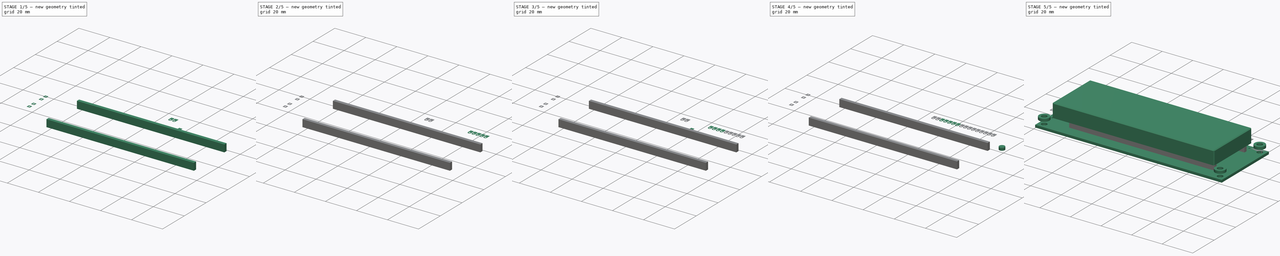
[diagram: build sequence overview — one tinted view per stage of 5, left to right]
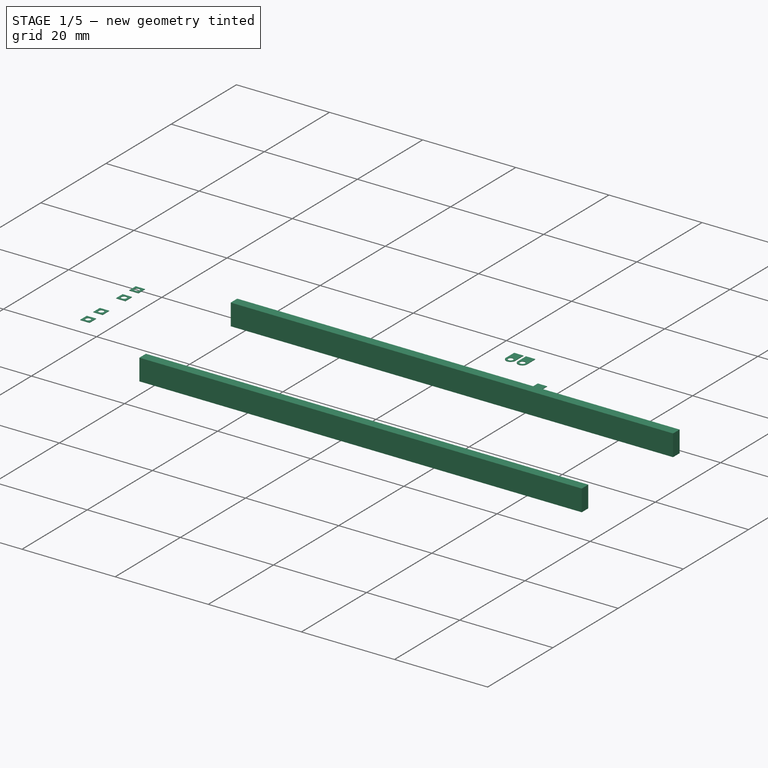
[diagram: stage 1 of 5 — iso view after this stage's code; geometry added in this stage tinted green]
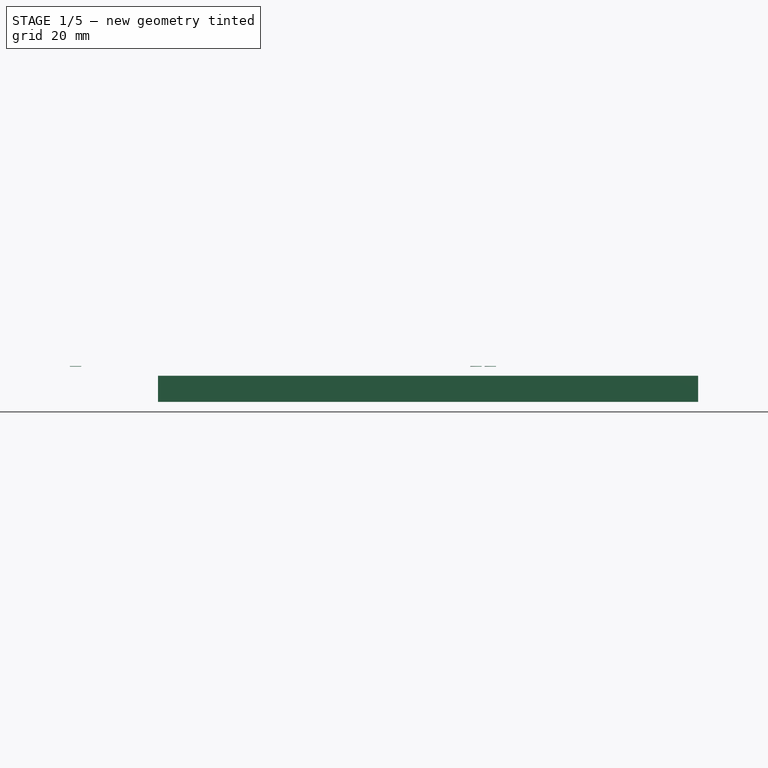
[diagram: stage 1 of 5 — front view after this stage's code; geometry added in this stage tinted green]
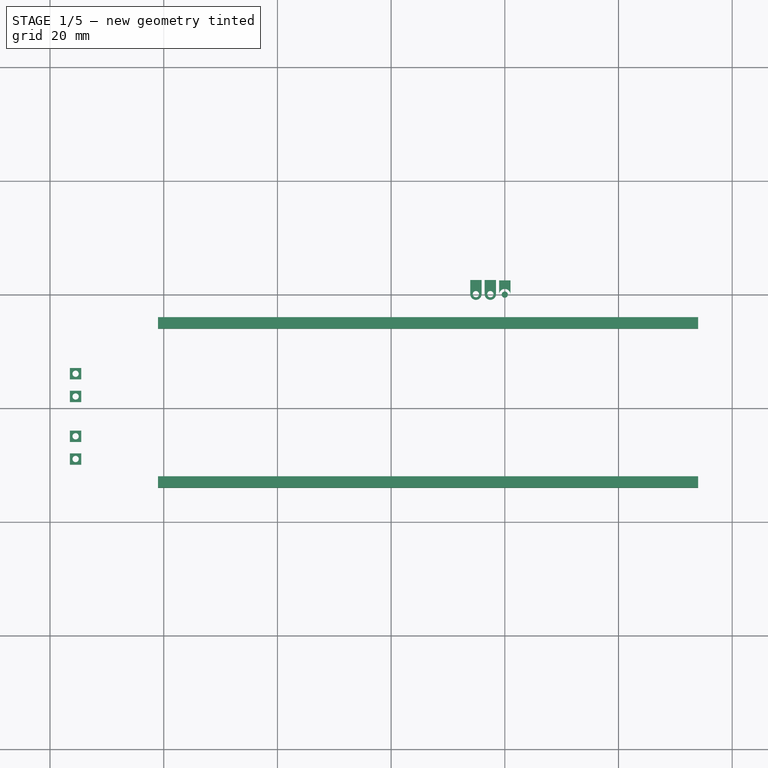
[diagram: stage 1 of 5 — top view after this stage's code; geometry added in this stage tinted green]
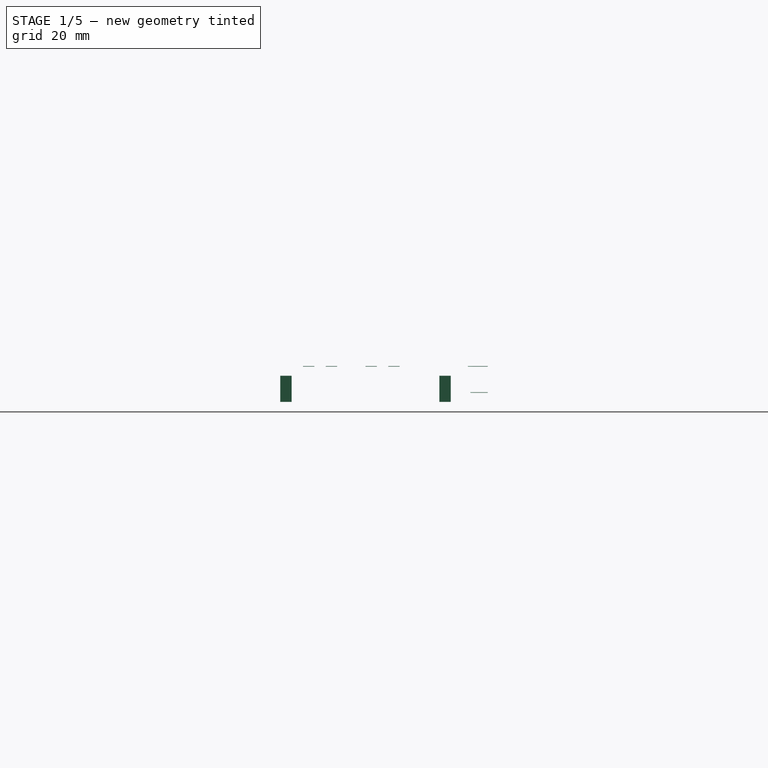
[diagram: stage 1 of 5 — right view after this stage's code; geometry added in this stage tinted green]
FCSTD DOCUMENT  (FreeCAD 0.17R11223 (Git))
Label: LCD-016N002L_13
License: Public Domain
LicenseURL: http://en.wikipedia.org/wiki/Public_domain
objects: Part::Cylinder×60, Part::Cut×41, Part::Box×25, Part::Fuse×16, Part::Chamfer×8, Part::Fillet×8, Sketcher::SketchObject×1, PartDesign::Pad×1, PartDesign::Body×1
note: 162 computed .brp shape members not serialized (recipe doc carries the construction recipe); baked Part::Feature solids carry a one-line shape summary decoded from their .brp

FEATURE [Part::Cylinder] Cylinder048
  Angle = 360
  AttacherType = Attacher::AttachEngine3D
  Height = 0.1
  Placement = pos=(0,0,1.6) rot=(0,0,1;0rad)
  Radius = 0.55
FEATURE [Part::Box] Box016  label="Kub016"
  AttacherType = Attacher::AttachEngine3D
  Height = 0.1
  Length = 2
  Placement = pos=(-1,0,1.6) rot=(0,0,1;0rad)
  Width = 2.5
FEATURE [Part::Cylinder] Cylinder049
  Angle = 360
  AttacherType = Attacher::AttachEngine3D
  Height = 0.1
  Placement = pos=(0,0,1.6) rot=(0,0,1;0rad)
  Radius = 1
FEATURE [Part::Cut] Cut032
  Base = -> Box016
  Tool = -> Cylinder049
FEATURE [Part::Cylinder] Cylinder050
  Angle = 360
  AttacherType = Attacher::AttachEngine3D
  Height = 0.1
  Placement = pos=(0,0,1.6) rot=(0,0,1;0rad)
  Radius = 1
FEATURE [Part::Cylinder] Cylinder051
  Angle = 360
  AttacherType = Attacher::AttachEngine3D
  Height = 0.1
  Placement = pos=(0,0,1.6) rot=(0,0,1;0rad)
  Radius = 0.55
FEATURE [Part::Cut] Cut033
  Base = -> Cylinder050
  Tool = -> Cylinder051
FEATURE [Part::Box] Box017  label="Kub017"
  AttacherType = Attacher::AttachEngine3D
  Height = 0.1
  Length = 2
  Placement = pos=(-1,0,1.6) rot=(0,0,1;0rad)
  Width = 2.5
FEATURE [Part::Cylinder] Cylinder052
  Angle = 360
  AttacherType = Attacher::AttachEngine3D
  Height = 0.1
  Placement = pos=(0,0,1.6) rot=(0,0,1;0rad)
  Radius = 1
FEATURE [Part::Cut] Cut034
  Base = -> Box017
  Tool = -> Cylinder052
FEATURE [Part::Fuse] Fusion014  label="Fusion030"
  Base = -> Cut033
  Placement = pos=(-2.54,0,4.6) rot=(0,0,1;0rad)
  Tool = -> Cut034
FEATURE [Part::Cylinder] Cylinder053
  Angle = 360
  AttacherType = Attacher::AttachEngine3D
  Height = 0.1
  Placement = pos=(0,0,1.6) rot=(0,0,1;0rad)
  Radius = 1
FEATURE [Part::Cylinder] Cylinder054
  Angle = 360
  AttacherType = Attacher::AttachEngine3D
  Height = 0.1
  Placement = pos=(0,0,1.6) rot=(0,0,1;0rad)
  Radius = 0.55
FEATURE [Part::Cut] Cut035
  Base = -> Cylinder053
  Tool = -> Cylinder054
FEATURE [Part::Box] Box018  label="Kub018"
  AttacherType = Attacher::AttachEngine3D
  Height = 0.1
  Length = 2
  Placement = pos=(-1,0,1.6) rot=(0,0,1;0rad)
  Width = 2.5
FEATURE [Part::Cylinder] Cylinder055
  Angle = 360
  AttacherType = Attacher::AttachEngine3D
  Height = 0.1
  Placement = pos=(0,0,1.6) rot=(0,0,1;0rad)
  Radius = 1
FEATURE [Part::Cut] Cut036
  Base = -> Box018
  Tool = -> Cylinder055
FEATURE [Part::Fuse] Fusion015  label="Fusion031"
  Base = -> Cut035
  Placement = pos=(-5.08,0,4.6) rot=(0,0,1;0rad)
  Tool = -> Cut036
FEATURE [Part::Box] Box019  label="Kub019"
  AttacherType = Attacher::AttachEngine3D
  Height = 0.1
  Length = 2
  Placement = pos=(-1,-1,1.6) rot=(0,0,1;0rad)
  Width = 2
FEATURE [Part::Cylinder] Cylinder056
  Angle = 360
  AttacherType = Attacher::AttachEngine3D
  Height = 0.1
  Placement = pos=(0,0,1.6) rot=(0,0,1;0rad)
  Radius = 0.55
FEATURE [Part::Cut] Cut037
  Base = -> Box019
  Placement = pos=(-75.5,-14,4.6) rot=(0,0,1;0rad)
  Tool = -> Cylinder056
FEATURE [Part::Box] Box020  label="Kub020"
  AttacherType = Attacher::AttachEngine3D
  Height = 0.1
  Length = 2
  Placement = pos=(-1,-1,1.6) rot=(0,0,1;0rad)
  Width = 2
FEATURE [Part::Cylinder] Cylinder057
  Angle = 360
  AttacherType = Attacher::AttachEngine3D
  Height = 0.1
  Placement = pos=(0,0,1.6) rot=(0,0,1;0rad)
  Radius = 0.55
FEATURE [Part::Cut] Cut038
  Base = -> Box020
  Placement = pos=(-75.5,-18,4.6) rot=(0,0,1;0rad)
  Tool = -> Cylinder057
FEATURE [Part::Box] Box021  label="Kub021"
  AttacherType = Attacher::AttachEngine3D
  Height = 0.1
  Length = 2
  Placement = pos=(-1,-1,1.6) rot=(0,0,1;0rad)
  Width = 2
FEATURE [Part::Cylinder] Cylinder058
  Angle = 360
  AttacherType = Attacher::AttachEngine3D
  Height = 0.1
  Placement = pos=(0,0,1.6) rot=(0,0,1;0rad)
  Radius = 0.55
FEATURE [Part::Cut] Cut039
  Base = -> Box021
  Placement = pos=(-75.5,-25,4.6) rot=(0,0,1;0rad)
  Tool = -> Cylinder058
FEATURE [Part::Box] Box022  label="Kub022"
  AttacherType = Attacher::AttachEngine3D
  Height = 0.1
  Length = 2
  Placement = pos=(-1,-1,1.6) rot=(0,0,1;0rad)
  Width = 2
FEATURE [Part::Cylinder] Cylinder059
  Angle = 360
  AttacherType = Attacher::AttachEngine3D
  Height = 0.1
  Placement = pos=(0,0,1.6) rot=(0,0,1;0rad)
  Radius = 0.55
FEATURE [Part::Cut] Cut040
  Base = -> Box022
  Placement = pos=(-75.5,-29,4.6) rot=(0,0,1;0rad)
  Tool = -> Cylinder059
FEATURE [Part::Box] Box023  label="Kub023"
  AttacherType = Attacher::AttachEngine3D
  Height = 4.6
  Length = 95
  Placement = pos=(-61,-6,0) rot=(0,0,1;0rad)
  Width = 2
FEATURE [Part::Box] Box024  label="Kub024"
  AttacherType = Attacher::AttachEngine3D
  Height = 4.6
  Length = 95
  Placement = pos=(-61,-34,0) rot=(0,0,1;0rad)
  Width = 2
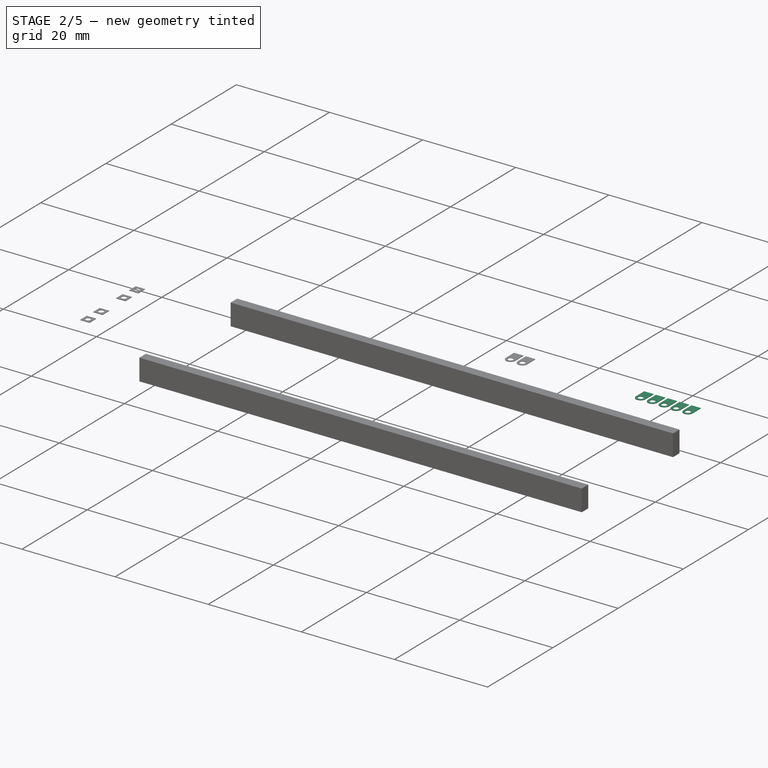
[diagram: stage 2 of 5 — iso view after this stage's code; geometry added in this stage tinted green]
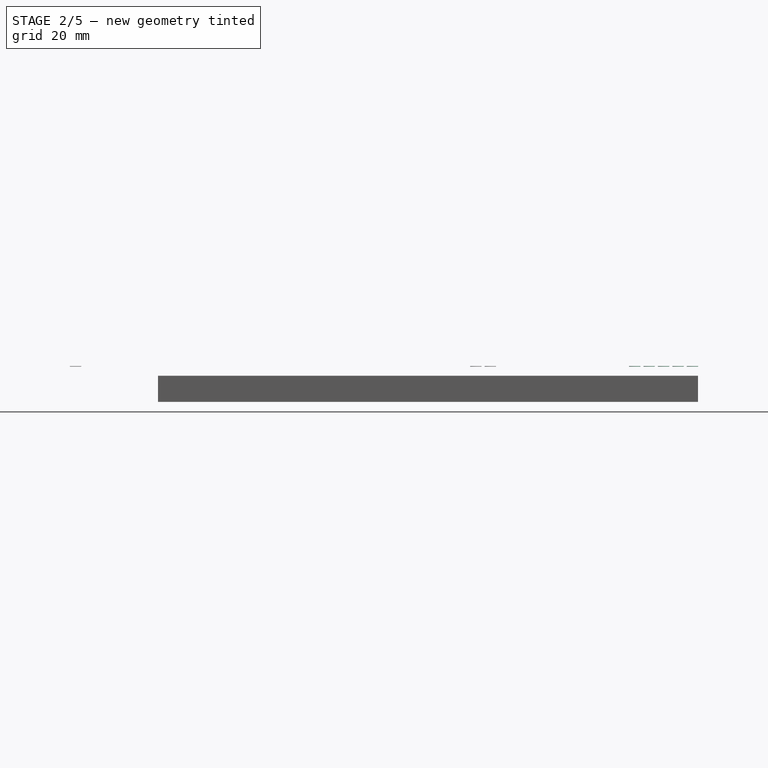
[diagram: stage 2 of 5 — front view after this stage's code; geometry added in this stage tinted green]
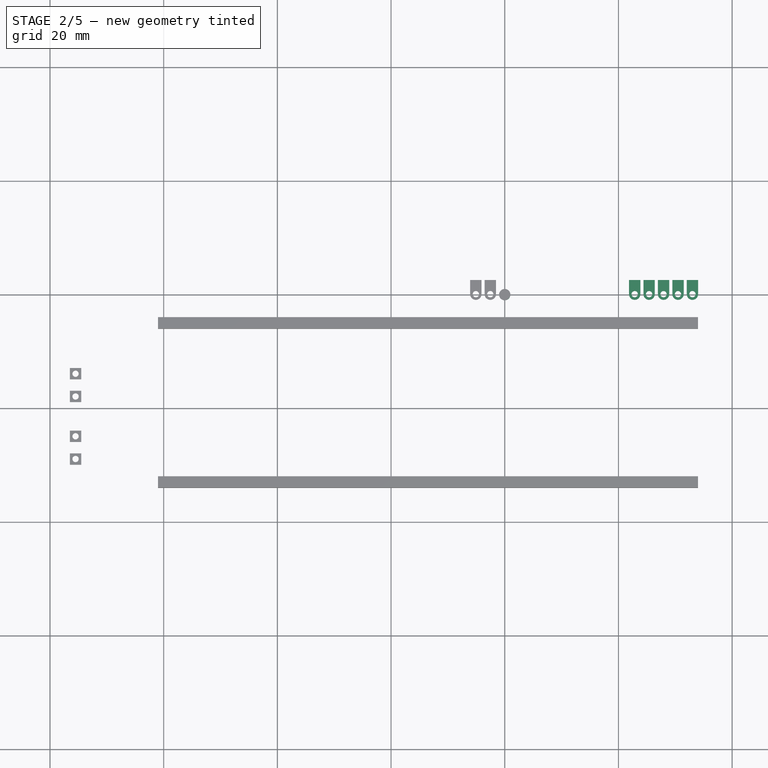
[diagram: stage 2 of 5 — top view after this stage's code; geometry added in this stage tinted green]
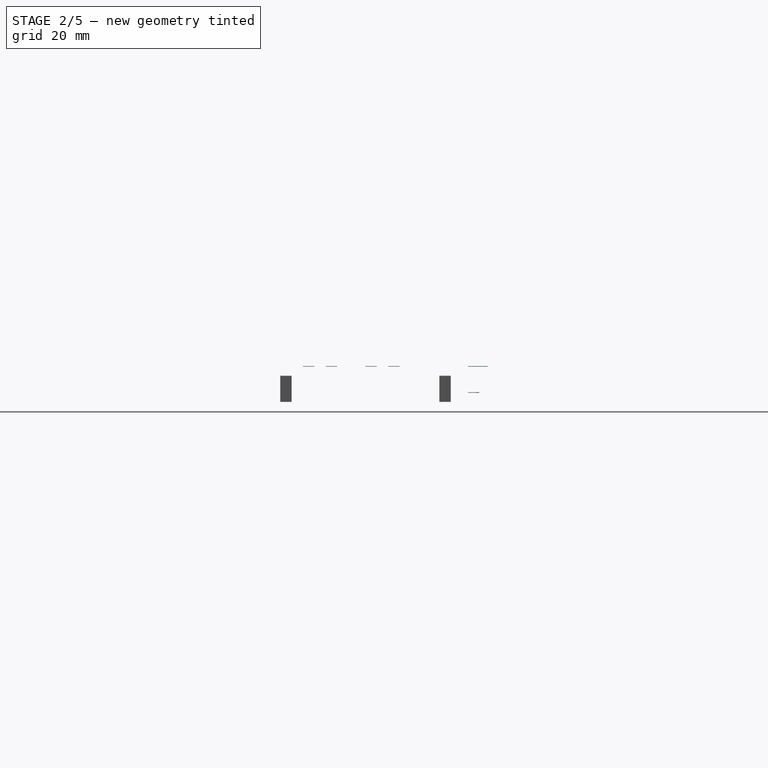
[diagram: stage 2 of 5 — right view after this stage's code; geometry added in this stage tinted green]
FEATURE [Part::Cylinder] Cylinder034
  Angle = 360
  AttacherType = Attacher::AttachEngine3D
  Height = 0.1
  Placement = pos=(0,0,1.6) rot=(0,0,1;0rad)
  Radius = 1
FEATURE [Part::Cylinder] Cylinder035
  Angle = 360
  AttacherType = Attacher::AttachEngine3D
  Height = 0.1
  Placement = pos=(0,0,1.6) rot=(0,0,1;0rad)
  Radius = 1
FEATURE [Part::Cylinder] Cylinder036
  Angle = 360
  AttacherType = Attacher::AttachEngine3D
  Height = 0.1
  Placement = pos=(0,0,1.6) rot=(0,0,1;0rad)
  Radius = 0.55
FEATURE [Part::Cut] Cut023
  Base = -> Cylinder035
  Tool = -> Cylinder036
FEATURE [Part::Box] Box012  label="Kub012"
  AttacherType = Attacher::AttachEngine3D
  Height = 0.1
  Length = 2
  Placement = pos=(-1,0,1.6) rot=(0,0,1;0rad)
  Width = 2.5
FEATURE [Part::Cylinder] Cylinder037
  Angle = 360
  AttacherType = Attacher::AttachEngine3D
  Height = 0.1
  Placement = pos=(0,0,1.6) rot=(0,0,1;0rad)
  Radius = 1
FEATURE [Part::Cut] Cut024
  Base = -> Box012
  Tool = -> Cylinder037
FEATURE [Part::Fuse] Fusion009  label="Fusion025"
  Base = -> Cut023
  Placement = pos=(22.86,0,4.6) rot=(0,0,1;0rad)
  Tool = -> Cut024
FEATURE [Part::Cylinder] Cylinder038
  Angle = 360
  AttacherType = Attacher::AttachEngine3D
  Height = 0.1
  Placement = pos=(0,0,1.6) rot=(0,0,1;0rad)
  Radius = 1
FEATURE [Part::Cylinder] Cylinder039
  Angle = 360
  AttacherType = Attacher::AttachEngine3D
  Height = 0.1
  Placement = pos=(0,0,1.6) rot=(0,0,1;0rad)
  Radius = 0.55
FEATURE [Part::Cut] Cut025
  Base = -> Cylinder038
  Tool = -> Cylinder039
FEATURE [Part::Box] Box013  label="Kub013"
  AttacherType = Attacher::AttachEngine3D
  Height = 0.1
  Length = 2
  Placement = pos=(-1,0,1.6) rot=(0,0,1;0rad)
  Width = 2.5
FEATURE [Part::Cylinder] Cylinder040
  Angle = 360
  AttacherType = Attacher::AttachEngine3D
  Height = 0.1
  Placement = pos=(0,0,1.6) rot=(0,0,1;0rad)
  Radius = 1
FEATURE [Part::Cut] Cut026
  Base = -> Box013
  Tool = -> Cylinder040
FEATURE [Part::Fuse] Fusion010  label="Fusion026"
  Base = -> Cut025
  Placement = pos=(25.4,0,4.6) rot=(0,0,1;0rad)
  Tool = -> Cut026
FEATURE [Part::Cylinder] Cylinder041
  Angle = 360
  AttacherType = Attacher::AttachEngine3D
  Height = 0.1
  Placement = pos=(0,0,1.6) rot=(0,0,1;0rad)
  Radius = 1
FEATURE [Part::Cylinder] Cylinder042
  Angle = 360
  AttacherType = Attacher::AttachEngine3D
  Height = 0.1
  Placement = pos=(0,0,1.6) rot=(0,0,1;0rad)
  Radius = 0.55
FEATURE [Part::Cut] Cut027
  Base = -> Cylinder041
  Tool = -> Cylinder042
FEATURE [Part::Box] Box014  label="Kub014"
  AttacherType = Attacher::AttachEngine3D
  Height = 0.1
  Length = 2
  Placement = pos=(-1,0,1.6) rot=(0,0,1;0rad)
  Width = 2.5
FEATURE [Part::Cylinder] Cylinder043
  Angle = 360
  AttacherType = Attacher::AttachEngine3D
  Height = 0.1
  Placement = pos=(0,0,1.6) rot=(0,0,1;0rad)
  Radius = 1
FEATURE [Part::Cut] Cut028
  Base = -> Box014
  Tool = -> Cylinder043
FEATURE [Part::Fuse] Fusion011  label="Fusion027"
  Base = -> Cut027
  Placement = pos=(27.94,0,4.6) rot=(0,0,1;0rad)
  Tool = -> Cut028
FEATURE [Part::Cylinder] Cylinder044
  Angle = 360
  AttacherType = Attacher::AttachEngine3D
  Height = 0.1
  Placement = pos=(0,0,1.6) rot=(0,0,1;0rad)
  Radius = 1
FEATURE [Part::Cylinder] Cylinder045
  Angle = 360
  AttacherType = Attacher::AttachEngine3D
  Height = 0.1
  Placement = pos=(0,0,1.6) rot=(0,0,1;0rad)
  Radius = 0.55
FEATURE [Part::Cut] Cut029
  Base = -> Cylinder044
  Tool = -> Cylinder045
FEATURE [Part::Box] Box015  label="Kub015"
  AttacherType = Attacher::AttachEngine3D
  Height = 0.1
  Length = 2
  Placement = pos=(-1,0,1.6) rot=(0,0,1;0rad)
  Width = 2.5
FEATURE [Part::Cylinder] Cylinder046
  Angle = 360
  AttacherType = Attacher::AttachEngine3D
  Height = 0.1
  Placement = pos=(0,0,1.6) rot=(0,0,1;0rad)
  Radius = 1
FEATURE [Part::Cut] Cut030
  Base = -> Box015
  Tool = -> Cylinder046
FEATURE [Part::Fuse] Fusion012  label="Fusion028"
  Base = -> Cut029
  Placement = pos=(30.48,0,4.6) rot=(0,0,1;0rad)
  Tool = -> Cut030
FEATURE [Part::Cylinder] Cylinder047
  Angle = 360
  AttacherType = Attacher::AttachEngine3D
  Height = 0.1
  Placement = pos=(0,0,1.6) rot=(0,0,1;0rad)
  Radius = 1
FEATURE [Part::Cut] Cut031
  Base = -> Cylinder047
  Tool = -> Cylinder048
FEATURE [Part::Fuse] Fusion013  label="Fusion029"
  Base = -> Cut031
  Placement = pos=(33.02,0,4.6) rot=(0,0,1;0rad)
  Tool = -> Cut032
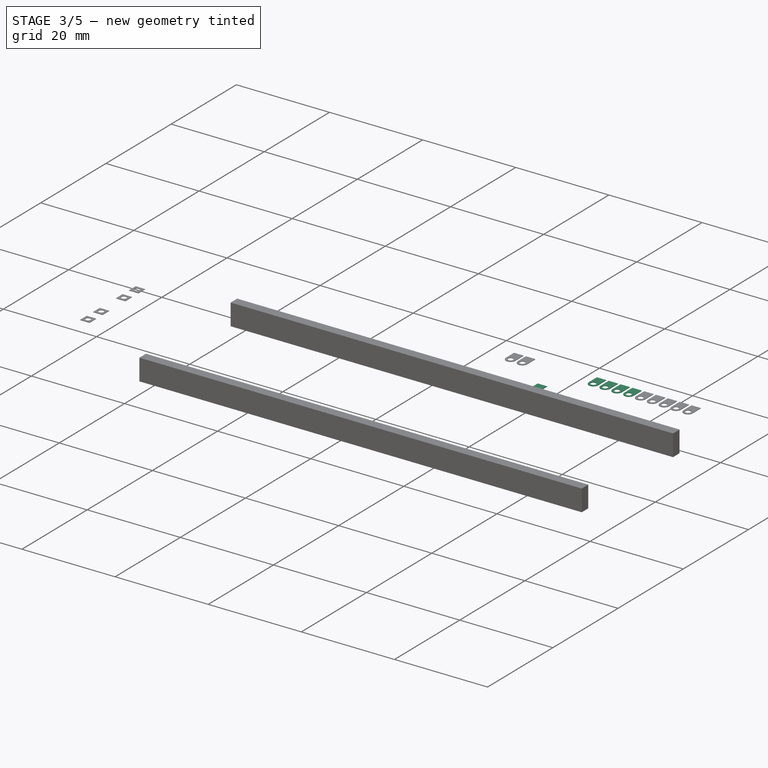
[diagram: stage 3 of 5 — iso view after this stage's code; geometry added in this stage tinted green]
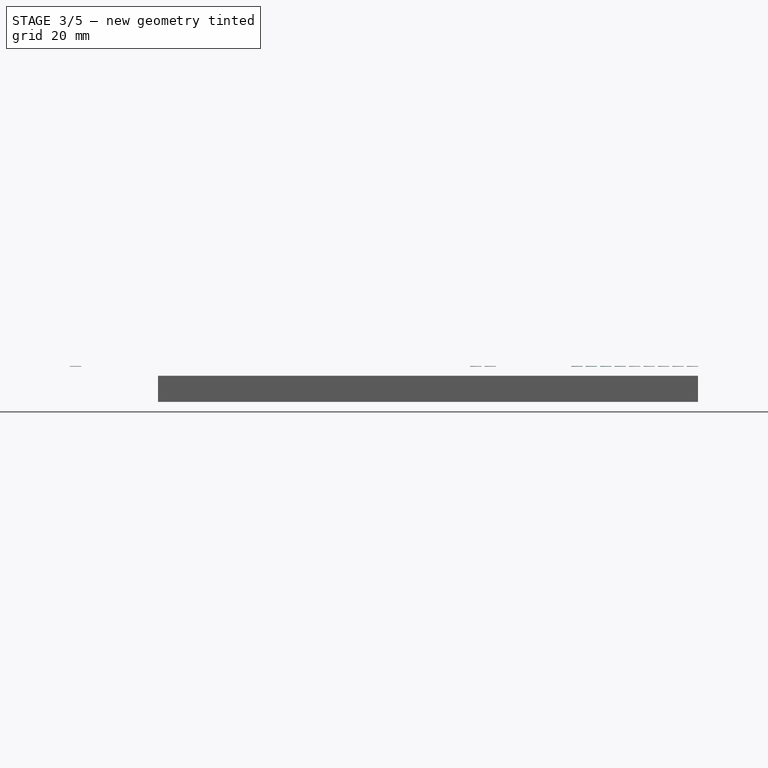
[diagram: stage 3 of 5 — front view after this stage's code; geometry added in this stage tinted green]
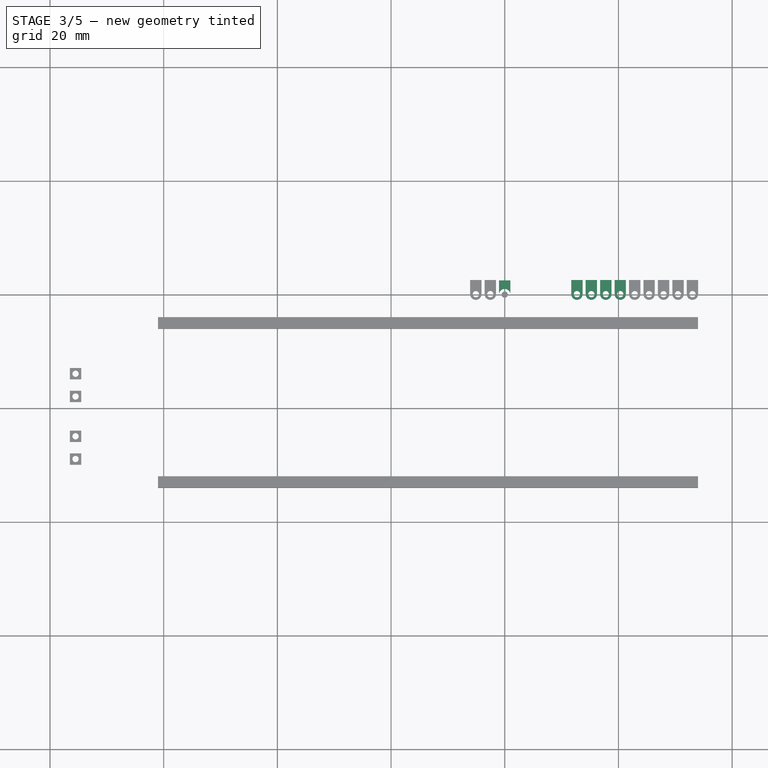
[diagram: stage 3 of 5 — top view after this stage's code; geometry added in this stage tinted green]
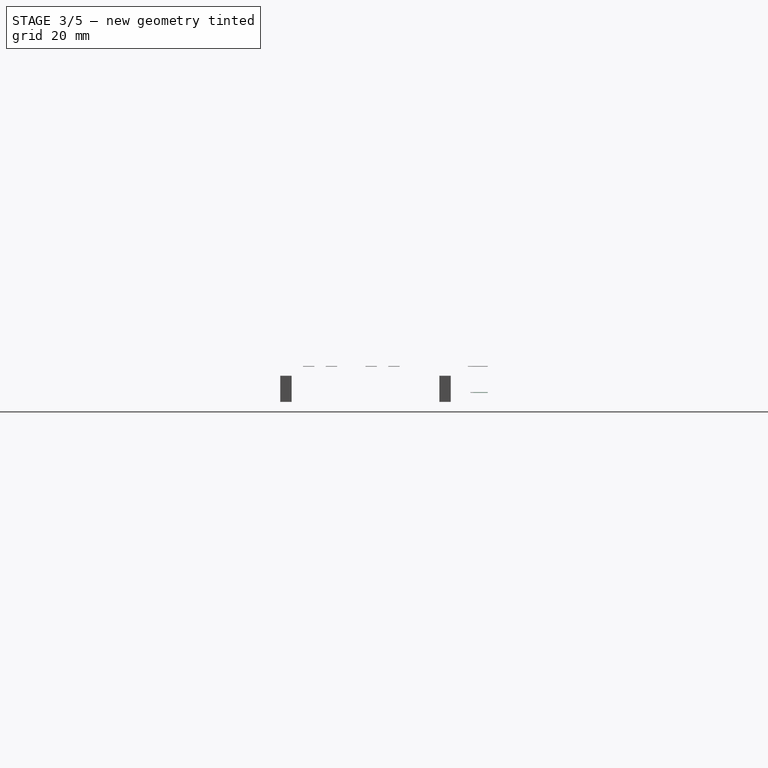
[diagram: stage 3 of 5 — right view after this stage's code; geometry added in this stage tinted green]
FEATURE [Part::Cylinder] Cylinder021
  Angle = 360
  AttacherType = Attacher::AttachEngine3D
  Height = 0.1
  Placement = pos=(0,0,1.6) rot=(0,0,1;0rad)
  Radius = 0.55
FEATURE [Part::Box] Box007  label="Kub007"
  AttacherType = Attacher::AttachEngine3D
  Height = 0.1
  Length = 2
  Placement = pos=(-1,0,1.6) rot=(0,0,1;0rad)
  Width = 2.5
FEATURE [Part::Cylinder] Cylinder022
  Angle = 360
  AttacherType = Attacher::AttachEngine3D
  Height = 0.1
  Placement = pos=(0,0,1.6) rot=(0,0,1;0rad)
  Radius = 1
FEATURE [Part::Cut] Cut014
  Base = -> Box007
  Tool = -> Cylinder022
FEATURE [Part::Cylinder] Cylinder023
  Angle = 360
  AttacherType = Attacher::AttachEngine3D
  Height = 0.1
  Placement = pos=(0,0,1.6) rot=(0,0,1;0rad)
  Radius = 1
FEATURE [Part::Cylinder] Cylinder024
  Angle = 360
  AttacherType = Attacher::AttachEngine3D
  Height = 0.1
  Placement = pos=(0,0,1.6) rot=(0,0,1;0rad)
  Radius = 0.55
FEATURE [Part::Cut] Cut015
  Base = -> Cylinder023
  Tool = -> Cylinder024
FEATURE [Part::Box] Box008  label="Kub008"
  AttacherType = Attacher::AttachEngine3D
  Height = 0.1
  Length = 2
  Placement = pos=(-1,0,1.6) rot=(0,0,1;0rad)
  Width = 2.5
FEATURE [Part::Cylinder] Cylinder025
  Angle = 360
  AttacherType = Attacher::AttachEngine3D
  Height = 0.1
  Placement = pos=(0,0,1.6) rot=(0,0,1;0rad)
  Radius = 1
FEATURE [Part::Cut] Cut016
  Base = -> Box008
  Tool = -> Cylinder025
FEATURE [Part::Fuse] Fusion005  label="Fusion021"
  Base = -> Cut015
  Placement = pos=(12.7,0,4.6) rot=(0,0,1;0rad)
  Tool = -> Cut016
FEATURE [Part::Cylinder] Cylinder026
  Angle = 360
  AttacherType = Attacher::AttachEngine3D
  Height = 0.1
  Placement = pos=(0,0,1.6) rot=(0,0,1;0rad)
  Radius = 1
FEATURE [Part::Cylinder] Cylinder027
  Angle = 360
  AttacherType = Attacher::AttachEngine3D
  Height = 0.1
  Placement = pos=(0,0,1.6) rot=(0,0,1;0rad)
  Radius = 0.55
FEATURE [Part::Cut] Cut017
  Base = -> Cylinder026
  Tool = -> Cylinder027
FEATURE [Part::Box] Box009  label="Kub009"
  AttacherType = Attacher::AttachEngine3D
  Height = 0.1
  Length = 2
  Placement = pos=(-1,0,1.6) rot=(0,0,1;0rad)
  Width = 2.5
FEATURE [Part::Cylinder] Cylinder028
  Angle = 360
  AttacherType = Attacher::AttachEngine3D
  Height = 0.1
  Placement = pos=(0,0,1.6) rot=(0,0,1;0rad)
  Radius = 1
FEATURE [Part::Cut] Cut018
  Base = -> Box009
  Tool = -> Cylinder028
FEATURE [Part::Fuse] Fusion006  label="Fusion022"
  Base = -> Cut017
  Placement = pos=(15.24,0,4.6) rot=(0,0,1;0rad)
  Tool = -> Cut018
FEATURE [Part::Cylinder] Cylinder029
  Angle = 360
  AttacherType = Attacher::AttachEngine3D
  Height = 0.1
  Placement = pos=(0,0,1.6) rot=(0,0,1;0rad)
  Radius = 1
FEATURE [Part::Cylinder] Cylinder030
  Angle = 360
  AttacherType = Attacher::AttachEngine3D
  Height = 0.1
  Placement = pos=(0,0,1.6) rot=(0,0,1;0rad)
  Radius = 0.55
FEATURE [Part::Cut] Cut019
  Base = -> Cylinder029
  Tool = -> Cylinder030
FEATURE [Part::Box] Box010  label="Kub010"
  AttacherType = Attacher::AttachEngine3D
  Height = 0.1
  Length = 2
  Placement = pos=(-1,0,1.6) rot=(0,0,1;0rad)
  Width = 2.5
FEATURE [Part::Cylinder] Cylinder031
  Angle = 360
  AttacherType = Attacher::AttachEngine3D
  Height = 0.1
  Placement = pos=(0,0,1.6) rot=(0,0,1;0rad)
  Radius = 1
FEATURE [Part::Cut] Cut020
  Base = -> Box010
  Tool = -> Cylinder031
FEATURE [Part::Fuse] Fusion007  label="Fusion023"
  Base = -> Cut019
  Placement = pos=(17.78,0,4.6) rot=(0,0,1;0rad)
  Tool = -> Cut020
FEATURE [Part::Cylinder] Cylinder032
  Angle = 360
  AttacherType = Attacher::AttachEngine3D
  Height = 0.1
  Placement = pos=(0,0,1.6) rot=(0,0,1;0rad)
  Radius = 1
FEATURE [Part::Cylinder] Cylinder033
  Angle = 360
  AttacherType = Attacher::AttachEngine3D
  Height = 0.1
  Placement = pos=(0,0,1.6) rot=(0,0,1;0rad)
  Radius = 0.55
FEATURE [Part::Cut] Cut021
  Base = -> Cylinder032
  Tool = -> Cylinder033
FEATURE [Part::Box] Box011  label="Kub011"
  AttacherType = Attacher::AttachEngine3D
  Height = 0.1
  Length = 2
  Placement = pos=(-1,0,1.6) rot=(0,0,1;0rad)
  Width = 2.5
FEATURE [Part::Cut] Cut022
  Base = -> Box011
  Tool = -> Cylinder034
FEATURE [Part::Fuse] Fusion008  label="Fusion024"
  Base = -> Cut021
  Placement = pos=(20.32,0,4.6) rot=(0,0,1;0rad)
  Tool = -> Cut022
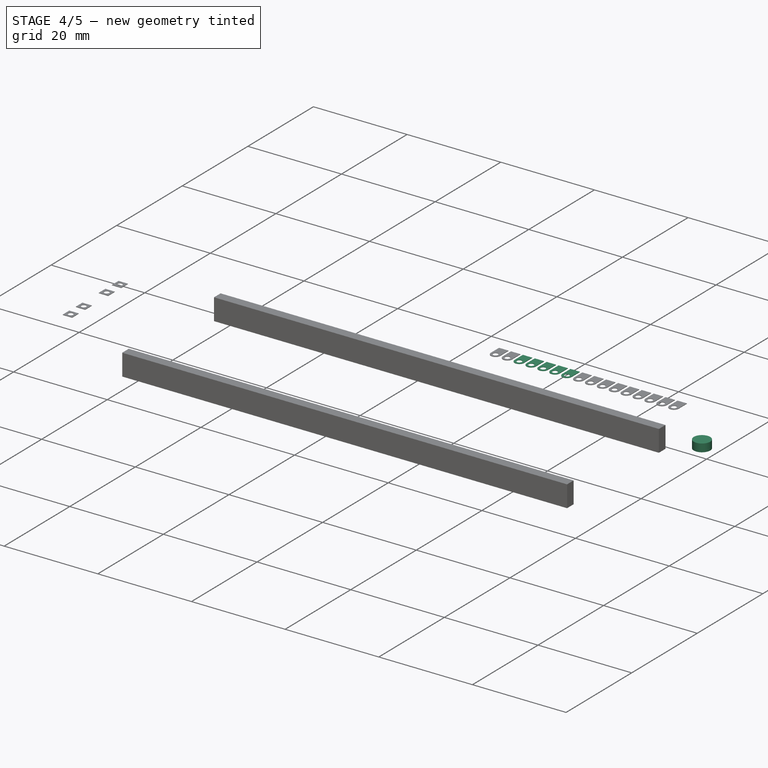
[diagram: stage 4 of 5 — iso view after this stage's code; geometry added in this stage tinted green]
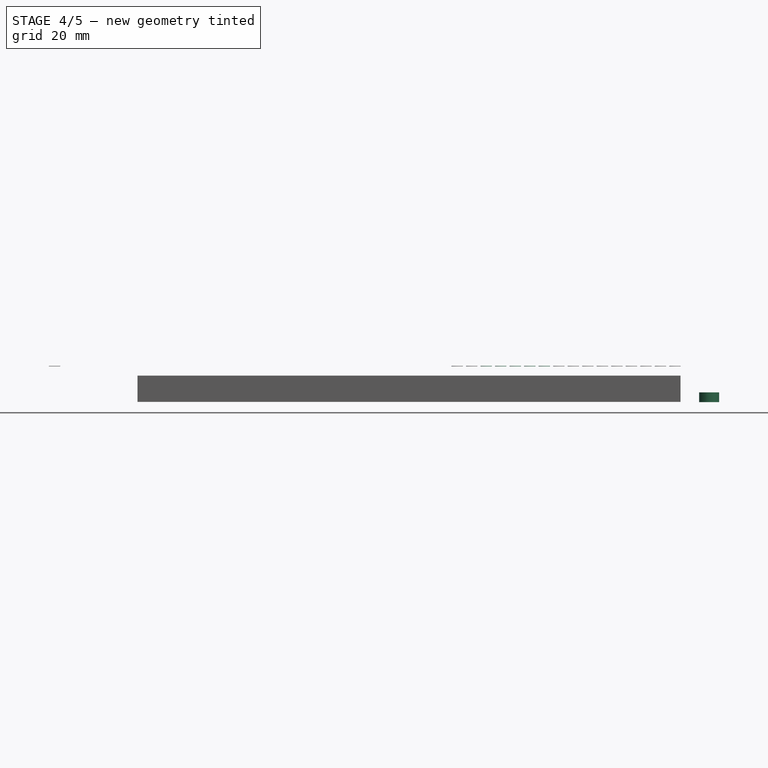
[diagram: stage 4 of 5 — front view after this stage's code; geometry added in this stage tinted green]
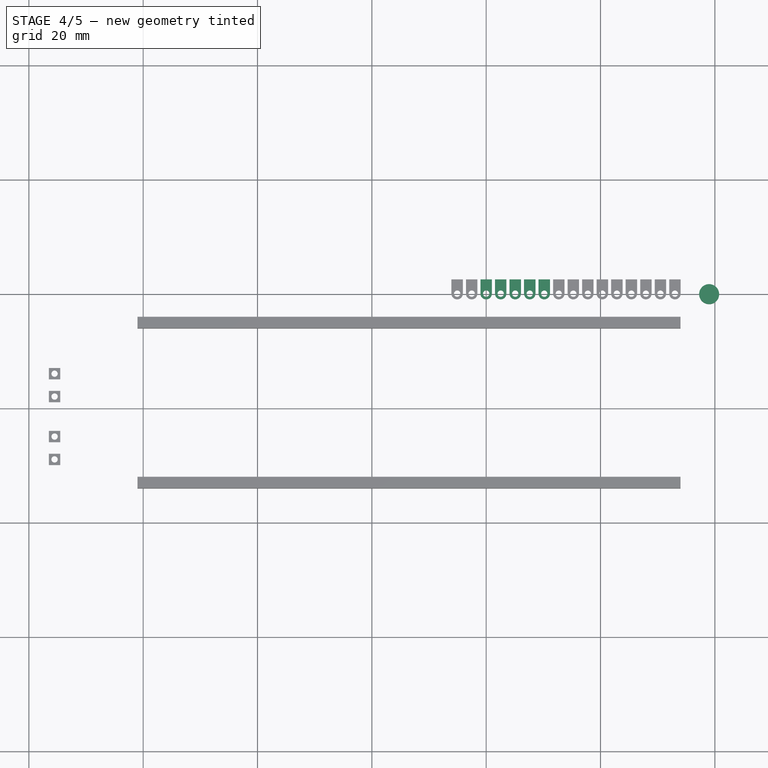
[diagram: stage 4 of 5 — top view after this stage's code; geometry added in this stage tinted green]
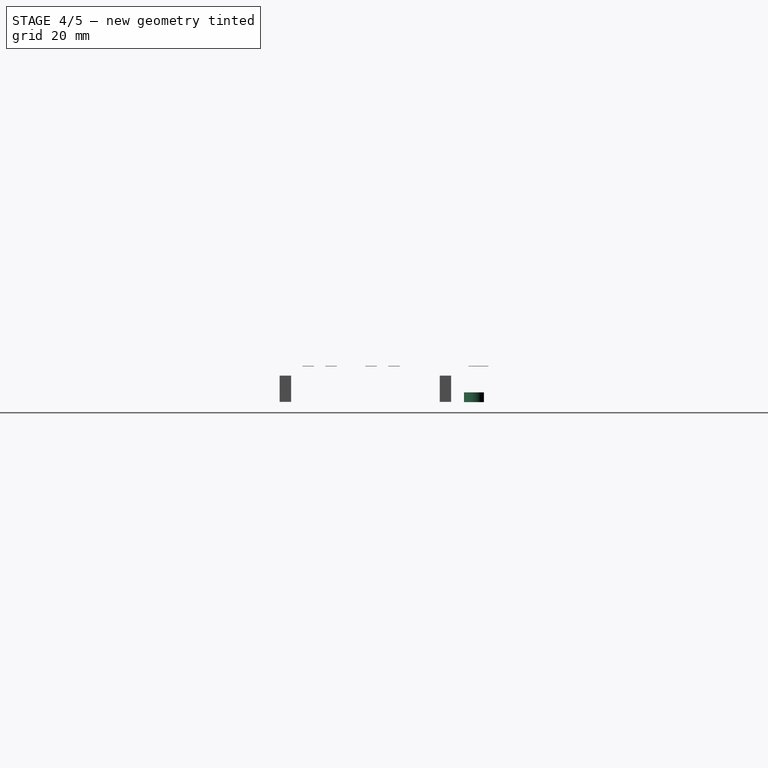
[diagram: stage 4 of 5 — right view after this stage's code; geometry added in this stage tinted green]
FEATURE [Part::Cylinder] Cylinder007
  Angle = 360
  AttacherType = Attacher::AttachEngine3D
  Height = 1.7
  Placement = pos=(39,0,-0.05) rot=(0,0,1;0rad)
  Radius = 1.75
FEATURE [Part::Cylinder] Cylinder008
  Angle = 360
  AttacherType = Attacher::AttachEngine3D
  Height = 0.1
  Placement = pos=(0,0,1.6) rot=(0,0,1;0rad)
  Radius = 1
FEATURE [Part::Cylinder] Cylinder009
  Angle = 360
  AttacherType = Attacher::AttachEngine3D
  Height = 0.1
  Placement = pos=(0,0,1.6) rot=(0,0,1;0rad)
  Radius = 0.55
FEATURE [Part::Cut] Cut005
  Base = -> Cylinder008
  Tool = -> Cylinder009
FEATURE [Part::Box] Box003  label="Kub003"
  AttacherType = Attacher::AttachEngine3D
  Height = 0.1
  Length = 2
  Placement = pos=(-1,0,1.6) rot=(0,0,1;0rad)
  Width = 2.5
FEATURE [Part::Cylinder] Cylinder010
  Angle = 360
  AttacherType = Attacher::AttachEngine3D
  Height = 0.1
  Placement = pos=(0,0,1.6) rot=(0,0,1;0rad)
  Radius = 1
FEATURE [Part::Cut] Cut006
  Base = -> Box003
  Tool = -> Cylinder010
FEATURE [Part::Fuse] Fusion  label="Fusion016"
  Base = -> Cut005
  Placement = pos=(0,0,4.6) rot=(0,0,1;0rad)
  Tool = -> Cut006
FEATURE [Part::Cylinder] Cylinder011
  Angle = 360
  AttacherType = Attacher::AttachEngine3D
  Height = 0.1
  Placement = pos=(0,0,1.6) rot=(0,0,1;0rad)
  Radius = 1
FEATURE [Part::Cylinder] Cylinder012
  Angle = 360
  AttacherType = Attacher::AttachEngine3D
  Height = 0.1
  Placement = pos=(0,0,1.6) rot=(0,0,1;0rad)
  Radius = 0.55
FEATURE [Part::Cut] Cut007
  Base = -> Cylinder011
  Tool = -> Cylinder012
FEATURE [Part::Box] Box004  label="Kub004"
  AttacherType = Attacher::AttachEngine3D
  Height = 0.1
  Length = 2
  Placement = pos=(-1,0,1.6) rot=(0,0,1;0rad)
  Width = 2.5
FEATURE [Part::Cylinder] Cylinder013
  Angle = 360
  AttacherType = Attacher::AttachEngine3D
  Height = 0.1
  Placement = pos=(0,0,1.6) rot=(0,0,1;0rad)
  Radius = 1
FEATURE [Part::Cut] Cut008
  Base = -> Box004
  Tool = -> Cylinder013
FEATURE [Part::Fuse] Fusion001  label="Fusion017"
  Base = -> Cut007
  Placement = pos=(2.54,0,4.6) rot=(0,0,1;0rad)
  Tool = -> Cut008
FEATURE [Part::Cylinder] Cylinder014
  Angle = 360
  AttacherType = Attacher::AttachEngine3D
  Height = 0.1
  Placement = pos=(0,0,1.6) rot=(0,0,1;0rad)
  Radius = 1
FEATURE [Part::Cylinder] Cylinder015
  Angle = 360
  AttacherType = Attacher::AttachEngine3D
  Height = 0.1
  Placement = pos=(0,0,1.6) rot=(0,0,1;0rad)
  Radius = 0.55
FEATURE [Part::Cut] Cut009
  Base = -> Cylinder014
  Tool = -> Cylinder015
FEATURE [Part::Box] Box005  label="Kub005"
  AttacherType = Attacher::AttachEngine3D
  Height = 0.1
  Length = 2
  Placement = pos=(-1,0,1.6) rot=(0,0,1;0rad)
  Width = 2.5
FEATURE [Part::Cylinder] Cylinder016
  Angle = 360
  AttacherType = Attacher::AttachEngine3D
  Height = 0.1
  Placement = pos=(0,0,1.6) rot=(0,0,1;0rad)
  Radius = 1
FEATURE [Part::Cut] Cut010
  Base = -> Box005
  Tool = -> Cylinder016
FEATURE [Part::Fuse] Fusion002  label="Fusion018"
  Base = -> Cut009
  Placement = pos=(5.08,0,4.6) rot=(0,0,1;0rad)
  Tool = -> Cut010
FEATURE [Part::Cylinder] Cylinder017
  Angle = 360
  AttacherType = Attacher::AttachEngine3D
  Height = 0.1
  Placement = pos=(0,0,1.6) rot=(0,0,1;0rad)
  Radius = 1
FEATURE [Part::Cylinder] Cylinder018
  Angle = 360
  AttacherType = Attacher::AttachEngine3D
  Height = 0.1
  Placement = pos=(0,0,1.6) rot=(0,0,1;0rad)
  Radius = 0.55
FEATURE [Part::Cut] Cut011
  Base = -> Cylinder017
  Tool = -> Cylinder018
FEATURE [Part::Box] Box006  label="Kub006"
  AttacherType = Attacher::AttachEngine3D
  Height = 0.1
  Length = 2
  Placement = pos=(-1,0,1.6) rot=(0,0,1;0rad)
  Width = 2.5
FEATURE [Part::Cylinder] Cylinder019
  Angle = 360
  AttacherType = Attacher::AttachEngine3D
  Height = 0.1
  Placement = pos=(0,0,1.6) rot=(0,0,1;0rad)
  Radius = 1
FEATURE [Part::Cut] Cut012
  Base = -> Box006
  Tool = -> Cylinder019
FEATURE [Part::Fuse] Fusion003  label="Fusion019"
  Base = -> Cut011
  Placement = pos=(7.62,0,4.6) rot=(0,0,1;0rad)
  Tool = -> Cut012
FEATURE [Part::Cylinder] Cylinder020
  Angle = 360
  AttacherType = Attacher::AttachEngine3D
  Height = 0.1
  Placement = pos=(0,0,1.6) rot=(0,0,1;0rad)
  Radius = 1
FEATURE [Part::Cut] Cut013
  Base = -> Cylinder020
  Tool = -> Cylinder021
FEATURE [Part::Fuse] Fusion004  label="Fusion020"
  Base = -> Cut013
  Placement = pos=(10.16,0,4.6) rot=(0,0,1;0rad)
  Tool = -> Cut014
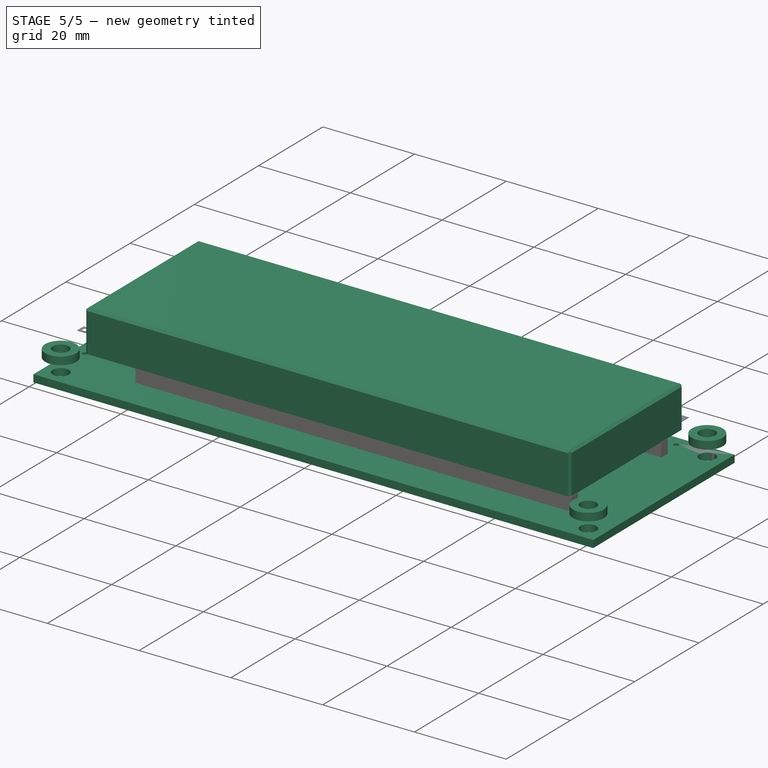
[diagram: stage 5 of 5 — iso view after this stage's code; geometry added in this stage tinted green]
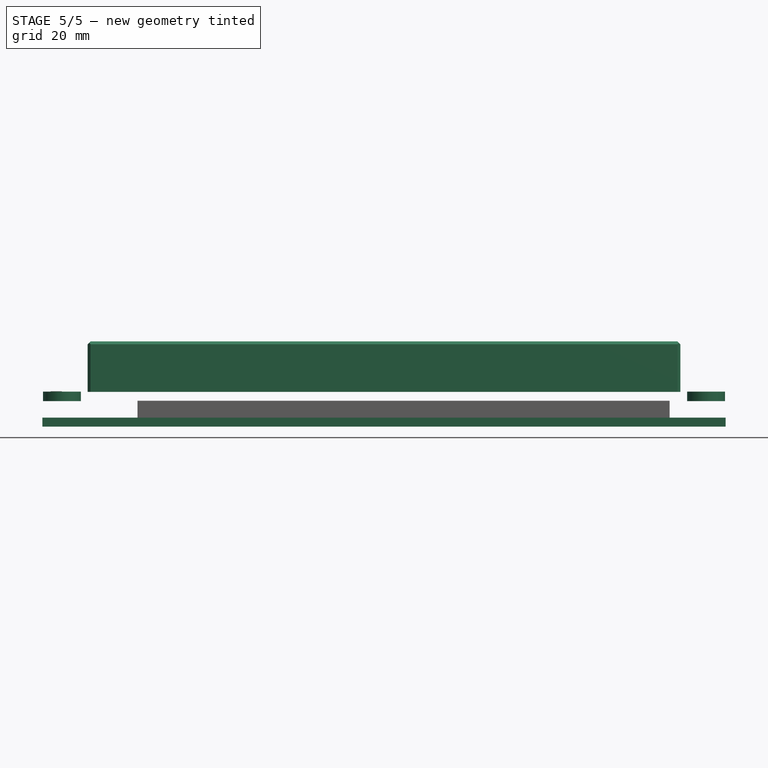
[diagram: stage 5 of 5 — front view after this stage's code; geometry added in this stage tinted green]
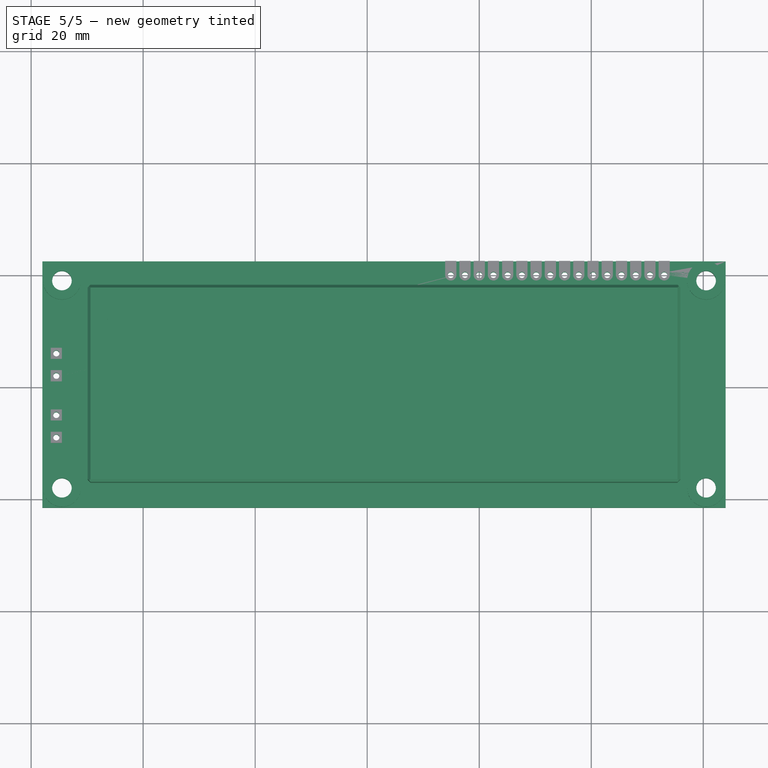
[diagram: stage 5 of 5 — top view after this stage's code; geometry added in this stage tinted green]
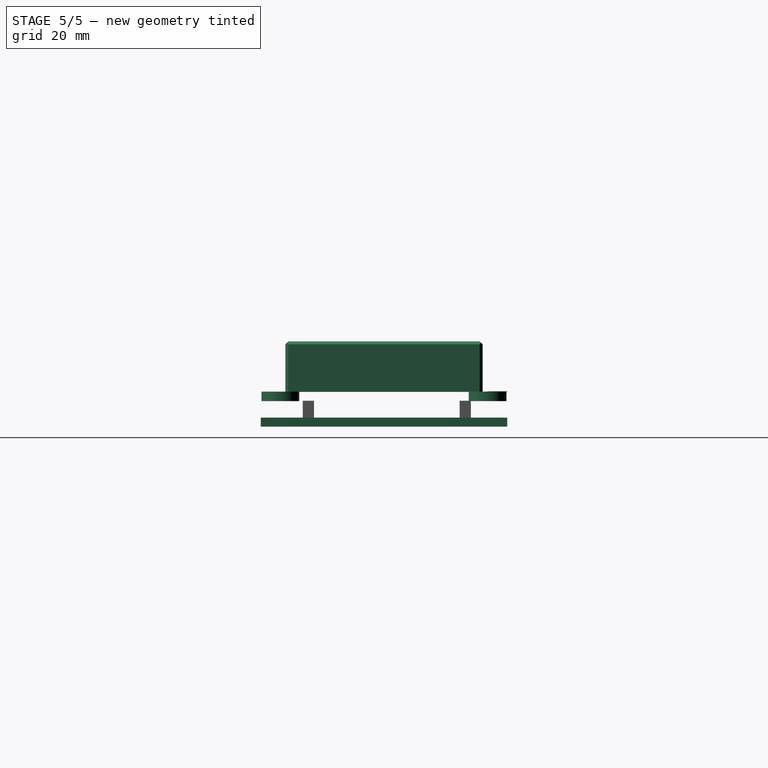
[diagram: stage 5 of 5 — right view after this stage's code; geometry added in this stage tinted green]
FEATURE [Sketcher::SketchObject] Sketch
  MapMode = 5
  Support = -> [XY_Plane]
  sketch-geometry (28):
    g0: LineSegment StartX=-78 StartY=2.5 StartZ=0 EndX=44 EndY=2.5 EndZ=0
    g1: LineSegment StartX=44 StartY=2.5 StartZ=0 EndX=44 EndY=-41.5 EndZ=0
    g2: LineSegment StartX=44 StartY=-41.5 StartZ=0 EndX=-78 EndY=-41.5 EndZ=0
    g3: LineSegment StartX=-78 StartY=-41.5 StartZ=0 EndX=-78 EndY=2.5 EndZ=0
    g4: Circle CenterX=-75.5 CenterY=-14 CenterZ=0 NormalX=0 NormalY=0 NormalZ=1 Radius=0.55
    g5: Circle CenterX=-75.5 CenterY=-18 CenterZ=0 NormalX=0 NormalY=0 NormalZ=1 Radius=0.55
    g6: Circle CenterX=-75.5 CenterY=-25 CenterZ=0 NormalX=0 NormalY=0 NormalZ=1 Radius=0.55
    g7: Circle CenterX=-75.5 CenterY=-29 CenterZ=0 NormalX=0 NormalY=0 NormalZ=1 Radius=0.55
    g8: Circle CenterX=-5.08 CenterY=0 CenterZ=0 NormalX=0 NormalY=0 NormalZ=1 Radius=0.55
    g9: Circle CenterX=-2.54 CenterY=0 CenterZ=0 NormalX=0 NormalY=0 NormalZ=1 Radius=0.55
    g10: Circle CenterX=0 CenterY=0 CenterZ=0 NormalX=0 NormalY=0 NormalZ=1 Radius=0.55
    g11: Circle CenterX=2.54 CenterY=0 CenterZ=0 NormalX=0 NormalY=0 NormalZ=1 Radius=0.55
    g12: Circle CenterX=12.7 CenterY=0 CenterZ=0 NormalX=0 NormalY=0 NormalZ=1 Radius=0.55
    g13: Circle CenterX=5.08 CenterY=0 CenterZ=0 NormalX=0 NormalY=0 NormalZ=1 Radius=0.55
    g14: Circle CenterX=7.62 CenterY=0 CenterZ=0 NormalX=0 NormalY=0 NormalZ=1 Radius=0.55
    g15: Circle CenterX=15.24 CenterY=0 CenterZ=0 NormalX=0 NormalY=0 NormalZ=1 Radius=0.55
    g16: Circle CenterX=17.78 CenterY=0 CenterZ=0 NormalX=0 NormalY=0 NormalZ=1 Radius=0.55
    g17: Circle CenterX=10.16 CenterY=0 CenterZ=0 NormalX=0 NormalY=0 NormalZ=1 Radius=0.55
    g18: Circle CenterX=20.32 CenterY=0 CenterZ=0 NormalX=0 NormalY=0 NormalZ=1 Radius=0.55
    g19: Circle CenterX=22.86 CenterY=0 CenterZ=0 NormalX=0 NormalY=0 NormalZ=1 Radius=0.55
    g20: Circle CenterX=25.4 CenterY=0 CenterZ=0 NormalX=0 NormalY=0 NormalZ=1 Radius=0.55
    g21: Circle CenterX=30.48 CenterY=0 CenterZ=0 NormalX=0 NormalY=0 NormalZ=1 Radius=0.55
    g22: Circle CenterX=33.02 CenterY=0 CenterZ=0 NormalX=0 NormalY=0 NormalZ=1 Radius=0.55
    g23: Circle CenterX=27.94 CenterY=0 CenterZ=0 NormalX=0 NormalY=0 NormalZ=1 Radius=0.55
    g24: Circle CenterX=-74.5 CenterY=-1 CenterZ=0 NormalX=0 NormalY=0 NormalZ=1 Radius=1.75
    g25: Circle CenterX=-74.5 CenterY=-38 CenterZ=0 NormalX=0 NormalY=0 NormalZ=1 Radius=1.75
    g26: Circle CenterX=40.5 CenterY=-38 CenterZ=0 NormalX=0 NormalY=0 NormalZ=1 Radius=1.75
    g27: Circle CenterX=40.5 CenterY=-1 CenterZ=0 NormalX=0 NormalY=0 NormalZ=1 Radius=1.75
  constraints (78):
    c: Coincident(g0,g1)
    c: Coincident(g1,g2)
    c: Coincident(g2,g3)
    c: Coincident(g3,g0)
    c: Horizontal(g0)
    c: Horizontal(g2)
    c: Vertical(g1)
    c: Vertical(g3)
    c: DistanceY(g2,g0) = 44
    c: DistanceX(g0,g0) = 122
    c: DistanceX(g-1,g0) = 44
    c: DistanceY(g-1,g0) = 2.5
    c: Equal(g4,g5)
    c: Equal(g4,g6)
    c: Equal(g4,g7)
    c: DistanceY(g7,g4) = 15
    c: DistanceY(g6,g5) = 7
    c: DistanceX(g0,g4) = 2.5
    c: DistanceX(g0,g5) = 2.5
    c: DistanceX(g6,g5) = 0
    c: DistanceX(g7,g4) = 0
    c: DistanceX(g9,g-1) = 2.54
    c: DistanceX(g8,g9) = 2.54
    c: DistanceX(g10,g-1) = 0
    c: DistanceX(g-1,g11) = 2.54
    c: DistanceY(g8,g-1) = 0
    c: DistanceY(g9,g-1) = 0
    c: Radius(g9) = 0.55
    c: Equal(g9,g8)
    c: Radius(g10) = 0.55
    c: Equal(g10, g11-g17) x7
    c: DistanceY(g10,g-1) = 0
    c: DistanceY(g11,g-1) = 0
    c: DistanceX(g-1,g13) = 5.08
    c: DistanceX(g-1,g14) = 7.62
    c: DistanceY(g13,g-1) = 0
    c: DistanceY(g14,g-1) = 0
    c: DistanceX(g-1,g17) = 10.16
    c: DistanceY(g17,g-1) = 0
    c: DistanceX(g-1,g12) = 12.7
    c: DistanceY(g12,g-1) = 0
    c: DistanceX(g-1,g15) = 15.24
    c: DistanceY(g15,g-1) = 0
    c: DistanceX(g-1,g16) = 17.78
    c: Radius(g18) = 0.55
    c: DistanceX(g-1,g18) = 20.32
    c: DistanceX(g-1,g19) = 22.86
    c: DistanceX(g-1,g20) = 25.4
    c: Radius(g20) = 0.55
    c: Equal(g20,g19)
    c: Equal(g20,g23)
    c: Equal(g20,g22)
    c: Equal(g20,g21)
    c: DistanceX(g-1,g23) = 27.94
    c: DistanceX(g-1,g21) = 30.48
    c: DistanceX(g-1,g22) = 33.02
    c: DistanceY(g16,g15) = 0
    c: DistanceY(g18,g16) = 0
    c: DistanceY(g19,g18) = 0
    c: DistanceY(g20,g19) = 0
    c: DistanceY(g23,g20) = 0
    c: DistanceY(g21,g23) = 0
    c: DistanceY(g22,g21) = 0
    c: Radius(g4) = 0.55
    c: Radius(g27) = 1.75
    c: Equal(g27,g26)
    c: Equal(g27,g25)
    c: Equal(g27,g24)
    c: DistanceX(g0,g24) = 3.5
    c: DistanceY(g24,g0) = 3.5
    c: DistanceX(g2,g25) = 3.5
    c: DistanceY(g2,g25) = 3.5
    c: DistanceX(g26,g1) = 3.5
    c: DistanceY(g1,g26) = 3.5
    c: DistanceX(g27,g0) = 3.5
    c: DistanceY(g27,g0) = 3.5
    c: DistanceY(g2,g7) = 12.5
    c: DistanceY(g2,g6) = 16.5
FEATURE [PartDesign::Pad] Pad
  Length = 1.6
  Length2 = 100
  Profile = -> Sketch
  Type = 0
FEATURE [PartDesign::Body] Body
  Group = -> [Sketch,Pad]
  Origin = -> BodyOrigin
  Placement = pos=(0,0,4.6) rot=(0,0,1;0rad)
  Tip = -> Pad
FEATURE [Part::Box] Box  label="Kub"
  AttacherType = Attacher::AttachEngine3D
  Height = 9
  Length = 105.8
  Placement = pos=(-69.9,-37.1,1.6) rot=(0,0,1;0rad)
  Width = 35.2
FEATURE [Part::Chamfer] Chamfer
  Base = -> Box
  Edges = 1 edges r=0.5: [Edge3]
FEATURE [Part::Chamfer] Chamfer001
  Base = -> Chamfer
  Edges = 1 edges r=0.5: [Edge1]
FEATURE [Part::Chamfer] Chamfer002
  Base = -> Chamfer001
  Edges = 1 edges r=0.5: [Edge16]
FEATURE [Part::Chamfer] Chamfer003
  Base = -> Chamfer002
  Edges = 1 edges r=0.5: [Edge14]
FEATURE [Part::Chamfer] Chamfer004
  Base = -> Chamfer003
  Edges = 1 edges r=0.5: [Edge15]
FEATURE [Part::Chamfer] Chamfer005
  Base = -> Chamfer004
  Edges = 1 edges r=0.5: [Edge24]
FEATURE [Part::Chamfer] Chamfer006
  Base = -> Chamfer005
  Edges = 1 edges r=0.5: [Edge16]
FEATURE [Part::Chamfer] Chamfer007
  Base = -> Chamfer006
  Edges = 1 edges r=0.5: [Edge25]
FEATURE [Part::Box] Box001  label="Kub001"
  AttacherType = Attacher::AttachEngine3D
  Height = 2
  Length = 99
  Placement = pos=(-66.5,-31.5,8.6) rot=(0,0,1;0rad)
  Width = 24
FEATURE [Part::Fillet] Fillet
  Base = -> Box001
  Edges = 1 edges r=1: [Edge3]
FEATURE [Part::Fillet] Fillet001
  Base = -> Fillet
  Edges = 1 edges r=1: [Edge3]
FEATURE [Part::Fillet] Fillet002
  Base = -> Fillet001
  Edges = 1 edges r=1: [Edge17]
  Placement = pos=(0,0,4) rot=(0,0,1;0rad)
FEATURE [Part::Fillet] Fillet003
  Base = -> Fillet002
  Edges = 1 edges r=1: [Edge15]
  Placement = pos=(0,0,-4) rot=(0,0,1;0rad)
FEATURE [Part::Box] Box002  label="Kub002"
  AttacherType = Attacher::AttachEngine3D
  Height = 2
  Length = 99
  Placement = pos=(-66.5,-31.5,8.6) rot=(0,0,1;0rad)
  Width = 24
FEATURE [Part::Fillet] Fillet004
  Base = -> Box002
  Edges = 1 edges r=1: [Edge3]
FEATURE [Part::Fillet] Fillet005
  Base = -> Fillet004
  Edges = 1 edges r=1: [Edge3]
FEATURE [Part::Fillet] Fillet006
  Base = -> Fillet005
  Edges = 1 edges r=1: [Edge17]
  Placement = pos=(0,0,4) rot=(0,0,1;0rad)
FEATURE [Part::Fillet] Fillet007
  Base = -> Fillet006
  Edges = 1 edges r=1: [Edge15]
  Placement = pos=(0,0,0.6) rot=(0,0,1;0rad)
FEATURE [Part::Cut] Cut
  Base = -> Chamfer007
  Placement = pos=(0,0,4.6) rot=(0,0,1;0rad)
  Tool = -> Fillet003
FEATURE [Part::Cylinder] Cylinder
  Angle = 360
  AttacherType = Attacher::AttachEngine3D
  Height = 1.7
  Placement = pos=(39,0,-0.05) rot=(0,0,1;0rad)
  Radius = 3.38
FEATURE [Part::Cylinder] Cylinder001
  Angle = 360
  AttacherType = Attacher::AttachEngine3D
  Height = 1.7
  Placement = pos=(39,0,-0.05) rot=(0,0,1;0rad)
  Radius = 1.75
FEATURE [Part::Cut] Cut001
  Base = -> Cylinder
  Placement = pos=(1.5,-1,4.6) rot=(0,0,1;0rad)
  Tool = -> Cylinder001
FEATURE [Part::Cylinder] Cylinder002
  Angle = 360
  AttacherType = Attacher::AttachEngine3D
  Height = 1.7
  Placement = pos=(39,0,-0.05) rot=(0,0,1;0rad)
  Radius = 3.38
FEATURE [Part::Cylinder] Cylinder003
  Angle = 360
  AttacherType = Attacher::AttachEngine3D
  Height = 1.7
  Placement = pos=(39,0,-0.05) rot=(0,0,1;0rad)
  Radius = 1.75
FEATURE [Part::Cut] Cut002
  Base = -> Cylinder002
  Placement = pos=(1.5,-38,4.6) rot=(0,0,1;0rad)
  Tool = -> Cylinder003
FEATURE [Part::Cylinder] Cylinder004
  Angle = 360
  AttacherType = Attacher::AttachEngine3D
  Height = 1.7
  Placement = pos=(39,0,-0.05) rot=(0,0,1;0rad)
  Radius = 3.38
FEATURE [Part::Cylinder] Cylinder005
  Angle = 360
  AttacherType = Attacher::AttachEngine3D
  Height = 1.7
  Placement = pos=(39,0,-0.05) rot=(0,0,1;0rad)
  Radius = 1.75
FEATURE [Part::Cut] Cut003
  Base = -> Cylinder004
  Placement = pos=(-113.5,-38,4.6) rot=(0,0,1;0rad)
  Tool = -> Cylinder005
FEATURE [Part::Cylinder] Cylinder006
  Angle = 360
  AttacherType = Attacher::AttachEngine3D
  Height = 1.7
  Placement = pos=(39,0,-0.05) rot=(0,0,1;0rad)
  Radius = 3.38
FEATURE [Part::Cut] Cut004
  Base = -> Cylinder006
  Placement = pos=(-113.5,-1,4.6) rot=(0,0,1;0rad)
  Tool = -> Cylinder007
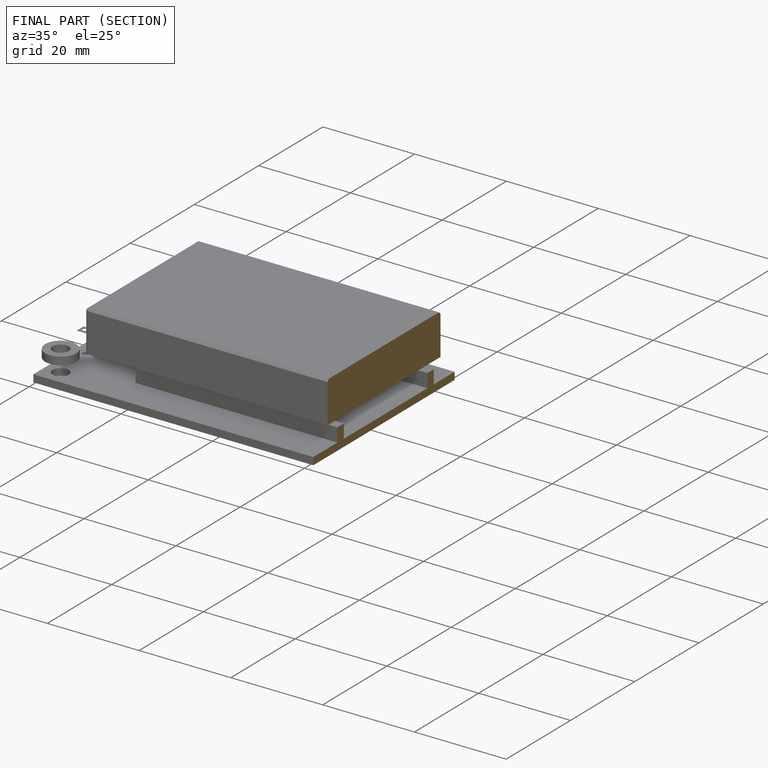
[diagram: finished part — half-section view (interior)]
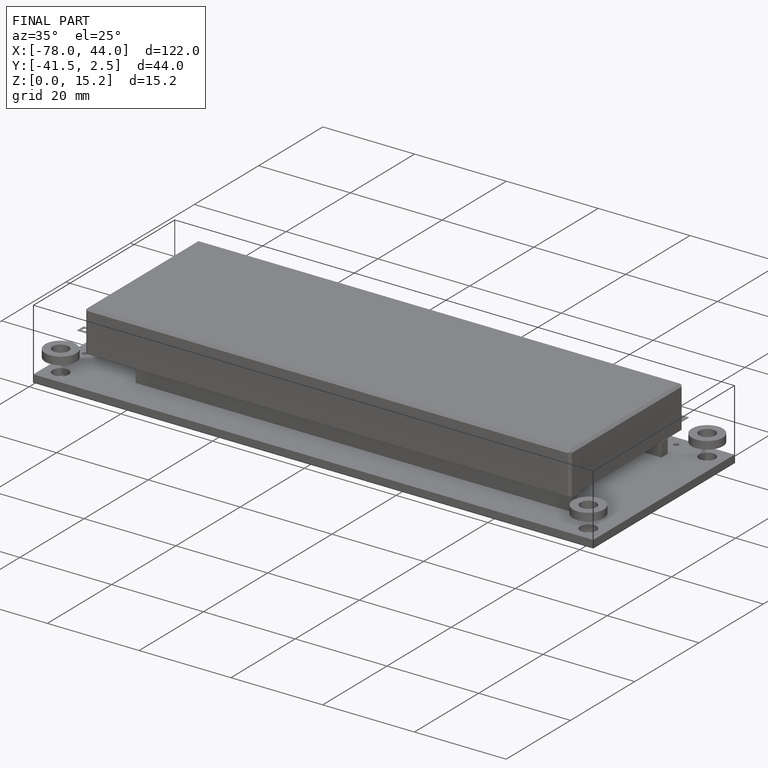
[diagram: finished part — iso view with bounding-box wireframe]
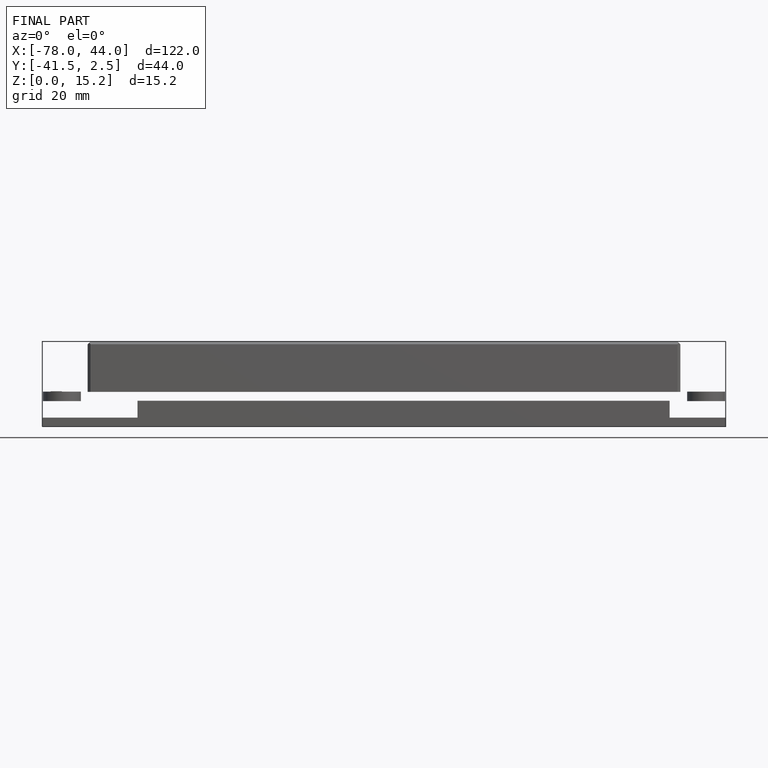
[diagram: finished part — front view with bounding-box wireframe]
